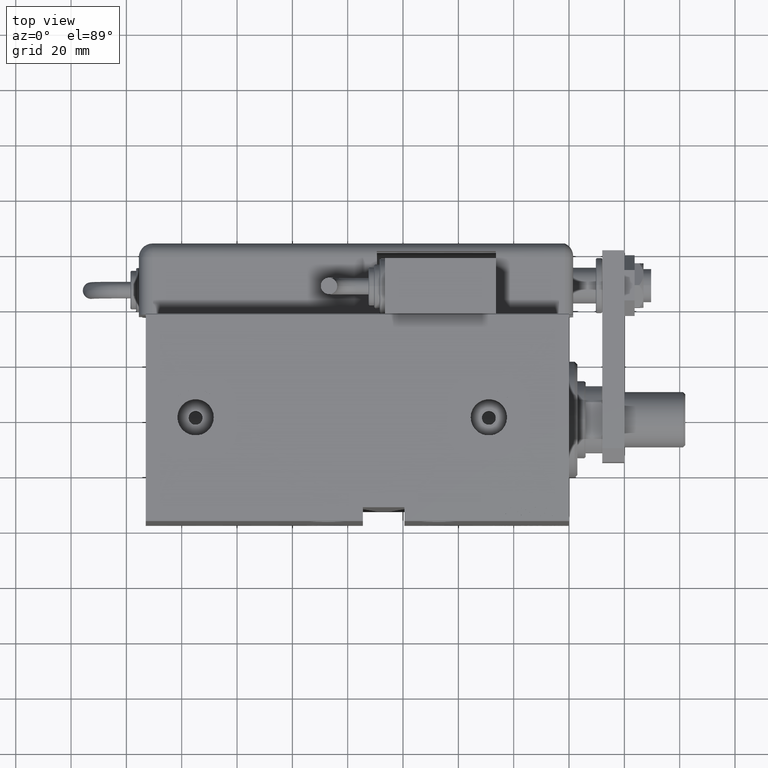
[diagram: clean part render]
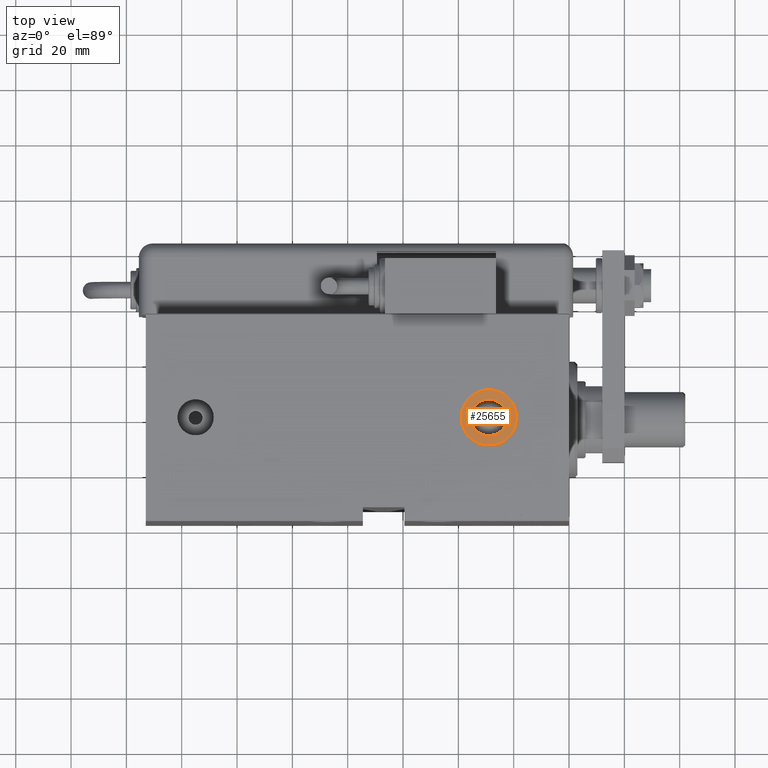
[diagram: same view with one face highlighted and labeled with its STEP entity id]
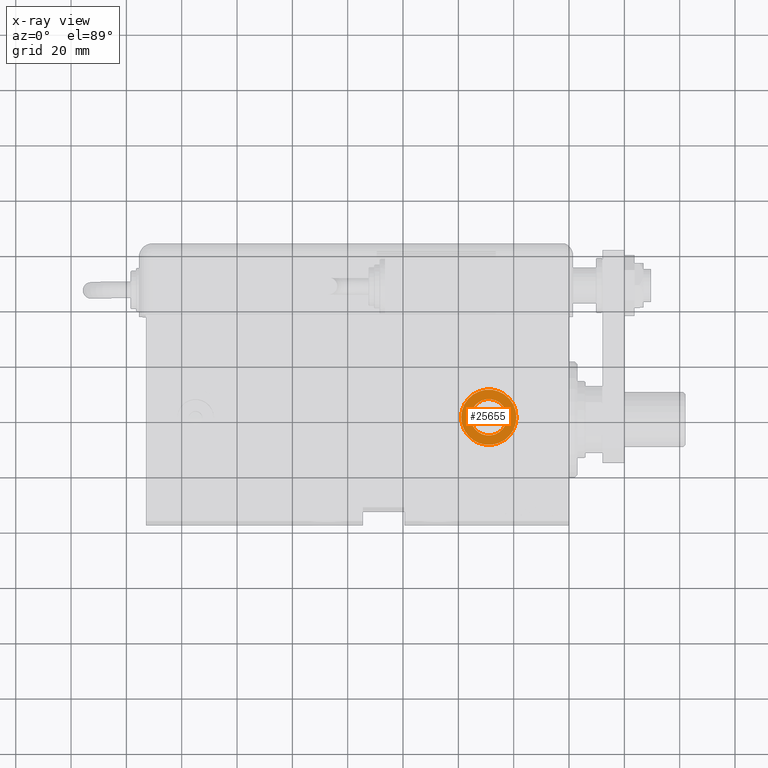
[diagram: x-ray of the same camera — body ghosted, the highlighted face saturated]
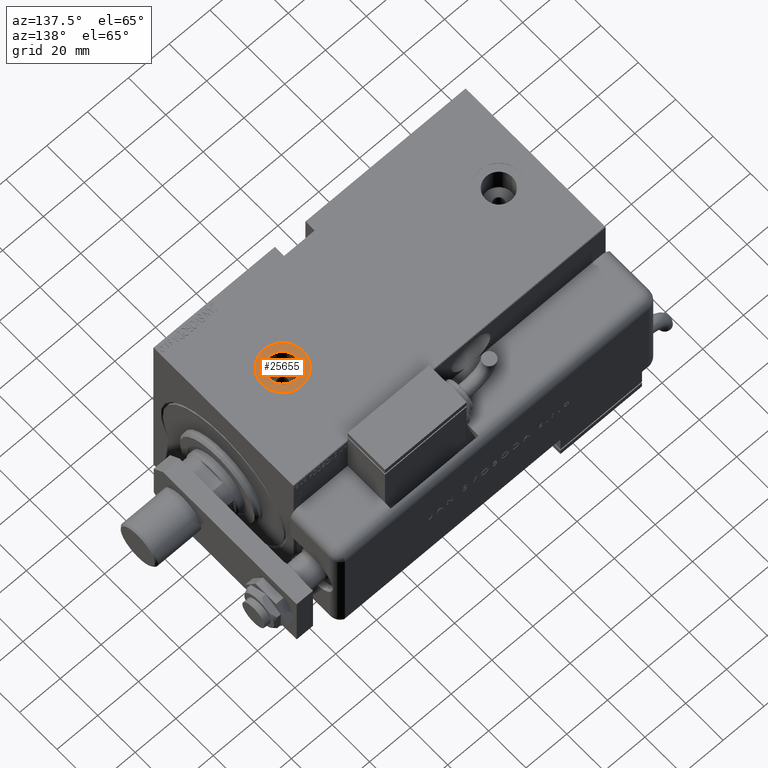
[diagram: same view with one face highlighted and labeled with its STEP entity id]
A machine part, top view. The second image highlights one B-rep face of the part: STEP entity #25655.
The next image is the same camera in x-ray: the body ghosted, the highlighted face saturated — about 0% of this face is hidden behind the body in this view.
A second angle (auxiliary view) of the same face is appended — the face is thin or edge-on in the first view.
In plain terms, the highlighted planar face has unit normal (0, -0, 1).
Its self-contained STEP definition (entity closure, byte-faithful):
#8419 = CARTESIAN_POINT ( 'NONE',  ( 39.00000000000000000, 0.000000000000000000, 49.89999999999999858 ) ) ;
#9018 = ORIENTED_EDGE ( 'NONE', *, *, #32657, .F. ) ;
#9559 = AXIS2_PLACEMENT_3D ( 'NONE', #20534, #35448, #17800 ) ;
#9696 = DIRECTION ( 'NONE',  ( 0.000000000000000000, 0.000000000000000000, 1.000000000000000000 ) ) ;
#10641 = AXIS2_PLACEMENT_3D ( 'NONE', #40960, #12972, #40358 ) ;
#10911 = CARTESIAN_POINT ( 'NONE',  ( 29.00000000000000000, 0.000000000000000000, 49.89999999999999858 ) ) ;
#12972 = DIRECTION ( 'NONE',  ( 0.000000000000000000, 0.000000000000000000, 1.000000000000000000 ) ) ;
#13010 = EDGE_LOOP ( 'NONE', ( #57334, #9018 ) ) ;
#13076 = VERTEX_POINT ( 'NONE', #13121 ) ;
#13121 = CARTESIAN_POINT ( 'NONE',  ( 22.42000000000000171, 8.058175938389579572E-16, 49.89999999999999858 ) ) ;
#13644 = VERTEX_POINT ( 'NONE', #8419 ) ;
#14580 = ORIENTED_EDGE ( 'NONE', *, *, #34948, .T. ) ;
#15832 = EDGE_LOOP ( 'NONE', ( #14580, #33118 ) ) ;
#17800 = DIRECTION ( 'NONE',  ( 1.000000000000000000, 0.000000000000000000, 0.000000000000000000 ) ) ;
#18814 = FACE_BOUND ( 'NONE', #13010, .T. ) ;
#19346 = CIRCLE ( 'NONE', #10641, 9.999999999999998224 ) ;
#20534 = CARTESIAN_POINT ( 'NONE',  ( 29.00000000000000000, 0.000000000000000000, 49.89999999999999858 ) ) ;
#25655 = ADVANCED_FACE ( 'NONE', ( #18814, #37364 ), #55923, .T. ) ;
#32657 = EDGE_CURVE ( 'NONE', #13076, #38585, #49037, .T. ) ;
#33057 = DIRECTION ( 'NONE',  ( 1.000000000000000000, 0.000000000000000000, 0.000000000000000000 ) ) ;
#33118 = ORIENTED_EDGE ( 'NONE', *, *, #48887, .T. ) ;
#33657 = CARTESIAN_POINT ( 'NONE',  ( 29.00000000000000000, 0.000000000000000000, 49.89999999999999858 ) ) ;
#34948 = EDGE_CURVE ( 'NONE', #13644, #59667, #57834, .T. ) ;
#35448 = DIRECTION ( 'NONE',  ( 0.000000000000000000, 0.000000000000000000, 1.000000000000000000 ) ) ;
#37364 = FACE_OUTER_BOUND ( 'NONE', #15832, .T. ) ;
#37422 = AXIS2_PLACEMENT_3D ( 'NONE', #33657, #59621, #33057 ) ;
#38037 = CARTESIAN_POINT ( 'NONE',  ( 35.57999999999999829, 0.000000000000000000, 49.89999999999999858 ) ) ;
#38585 = VERTEX_POINT ( 'NONE', #38037 ) ;
#38677 = CIRCLE ( 'NONE', #9559, 6.579999999999999183 ) ;
#39187 = DIRECTION ( 'NONE',  ( 1.000000000000000000, 0.000000000000000000, 0.000000000000000000 ) ) ;
#40358 = DIRECTION ( 'NONE',  ( 1.000000000000000000, 0.000000000000000000, 0.000000000000000000 ) ) ;
#40960 = CARTESIAN_POINT ( 'NONE',  ( 29.00000000000000000, 0.000000000000000000, 49.89999999999999858 ) ) ;
#41054 = AXIS2_PLACEMENT_3D ( 'NONE', #51363, #9696, #50485 ) ;
#42202 = AXIS2_PLACEMENT_3D ( 'NONE', #10911, #48301, #39187 ) ;
#42272 = EDGE_CURVE ( 'NONE', #38585, #13076, #38677, .T. ) ;
#48301 = DIRECTION ( 'NONE',  ( 0.000000000000000000, 0.000000000000000000, 1.000000000000000000 ) ) ;
#48887 = EDGE_CURVE ( 'NONE', #59667, #13644, #19346, .T. ) ;
#49037 = CIRCLE ( 'NONE', #42202, 6.579999999999999183 ) ;
#50485 = DIRECTION ( 'NONE',  ( 1.000000000000000000, 0.000000000000000000, -0.000000000000000000 ) ) ;
#51363 = CARTESIAN_POINT ( 'NONE',  ( 29.00000000000000000, 0.000000000000000000, 49.89999999999999858 ) ) ;
#55923 = PLANE ( 'NONE',  #41054 ) ;
#56956 = CARTESIAN_POINT ( 'NONE',  ( 19.00000000000000355, 1.224646799147352665E-15, 49.89999999999999858 ) ) ;
#57334 = ORIENTED_EDGE ( 'NONE', *, *, #42272, .F. ) ;
#57834 = CIRCLE ( 'NONE', #37422, 9.999999999999998224 ) ;
#59621 = DIRECTION ( 'NONE',  ( 0.000000000000000000, 0.000000000000000000, 1.000000000000000000 ) ) ;
#59667 = VERTEX_POINT ( 'NONE', #56956 ) ;